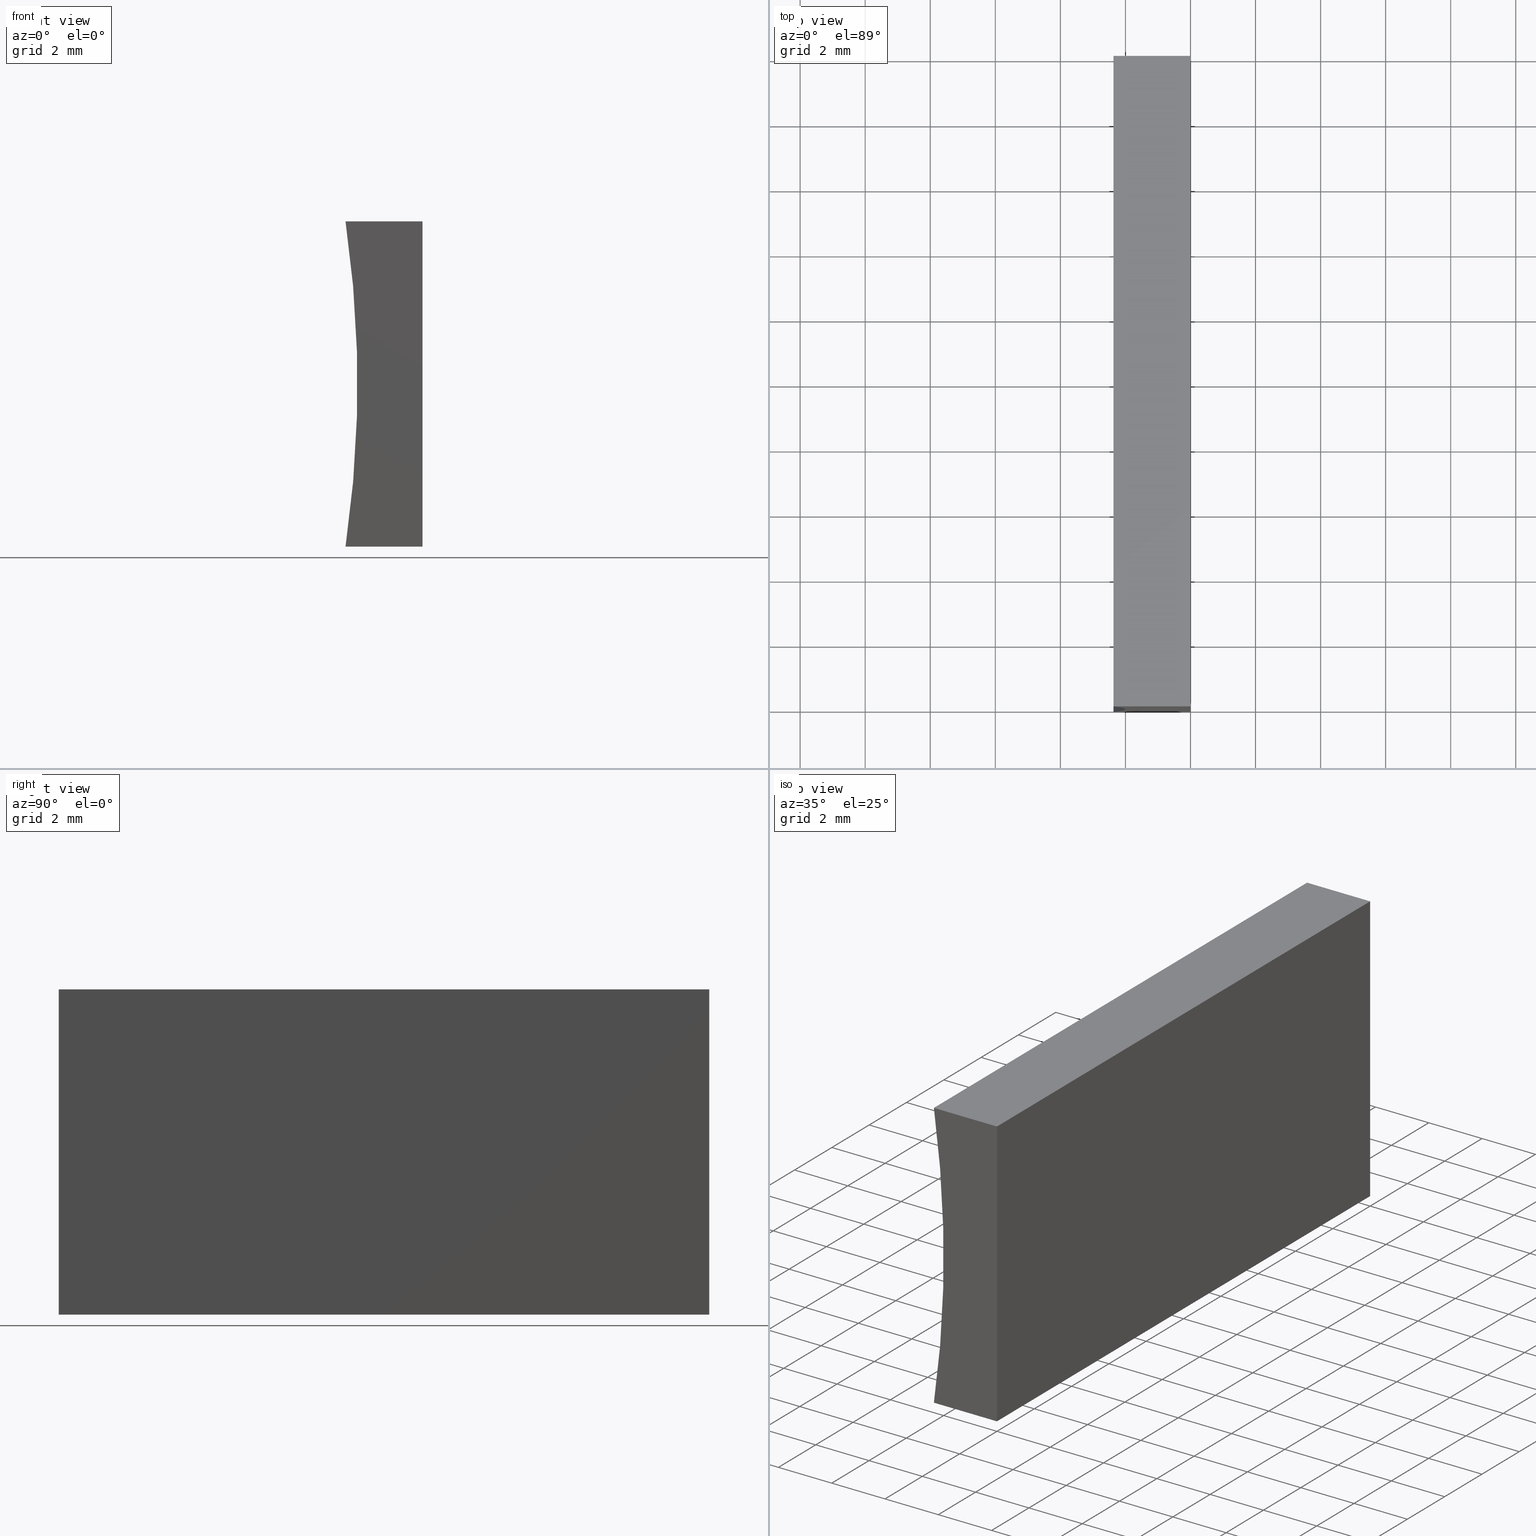
[diagram: canonical four-view strip — front | top / right | iso, engineering-drawing reading convention]
A machine part, canonical four-view strip (front | top / right | iso — engineering-drawing reading convention). The complete STEP part file that produces these views, byte-faithful:
ISO-10303-21;
HEADER;
FILE_DESCRIPTION (( 'STEP AP214' ),
    '1' );
FILE_NAME ('155480.STEP',
    '2019-07-03T07:46:18',
    ( 'user' ),
    ( '΢���й�' ),
    'SwSTEP 2.0',
    'SolidWorks 2016',
    '' );
FILE_SCHEMA (( 'AUTOMOTIVE_DESIGN' ));
ENDSEC;

DATA;
#1 = ADVANCED_FACE ( 'NONE', ( #21 ), #162, .F. ) ;
#2 = PRODUCT_DEFINITION_SHAPE ( 'NONE', 'NONE',  #20 ) ;
#3 = PRODUCT_DEFINITION_CONTEXT ( 'detailed design', #136, 'design' ) ;
#4 = LINE ( 'NONE', #117, #149 ) ;
#5 = SURFACE_STYLE_USAGE ( .BOTH. , #197 ) ;
#6 = UNCERTAINTY_MEASURE_WITH_UNIT (LENGTH_MEASURE( 1.000000000000000100E-005 ), #63, 'distance_accuracy_value', 'NONE');
#7 = EDGE_CURVE ( 'NONE', #81, #139, #37, .T. ) ;
#8 = VECTOR ( 'NONE', #140, 1000.000000000000000 ) ;
#9 = ORIENTED_EDGE ( 'NONE', *, *, #146, .T. ) ;
#10 = CARTESIAN_POINT ( 'NONE',  ( -2.365849282349278900, 0.0000000000000000000, 8.673617379884035500E-016 ) ) ;
#11 = ORIENTED_EDGE ( 'NONE', *, *, #141, .T. ) ;
#12 = ADVANCED_FACE ( 'NONE', ( #47 ), #98, .F. ) ;
#13 = FACE_OUTER_BOUND ( 'NONE', #147, .T. ) ;
#14 = LINE ( 'NONE', #135, #93 ) ;
#15 = PLANE ( 'NONE',  #200 ) ;
#16 = ORIENTED_EDGE ( 'NONE', *, *, #141, .F. ) ;
#17 = EDGE_LOOP ( 'NONE', ( #53, #188, #68, #90 ) ) ;
#18 = CARTESIAN_POINT ( 'NONE',  ( 0.0000000000000000000, 0.0000000000000000000, 0.0000000000000000000 ) ) ;
#19 = PLANE ( 'NONE',  #142 ) ;
#20 = PRODUCT_DEFINITION ( 'δ֪', '', #155, #3 ) ;
#21 = FACE_OUTER_BOUND ( 'NONE', #95, .T. ) ;
#22 = ORIENTED_EDGE ( 'NONE', *, *, #115, .T. ) ;
#23 = CARTESIAN_POINT ( 'NONE',  ( 0.0000000000000000000, 20.00000000000000000, 0.0000000000000000000 ) ) ;
#24 = SHAPE_DEFINITION_REPRESENTATION ( #2, #44 ) ;
#25 = CARTESIAN_POINT ( 'NONE',  ( 0.0000000000000000000, 20.00000000000000000, 0.0000000000000000000 ) ) ;
#26 = PLANE ( 'NONE',  #33 ) ;
#27 = DIRECTION ( 'NONE',  ( -7.332349904615366500E-016, 0.0000000000000000000, -1.000000000000000000 ) ) ;
#28 = CARTESIAN_POINT ( 'NONE',  ( -36.35000000000000100, 0.0000000000000000000, 5.000000000000005300 ) ) ;
#29 = DIRECTION ( 'NONE',  ( -1.000000000000000000, 0.0000000000000000000, -7.332349904615364600E-016 ) ) ;
#30 = MANIFOLD_SOLID_BREP ( '͹̨-����1', #180 ) ;
#31 = EDGE_LOOP ( 'NONE', ( #204, #134, #16, #66 ) ) ;
#32 = ORIENTED_EDGE ( 'NONE', *, *, #84, .F. ) ;
#33 = AXIS2_PLACEMENT_3D ( 'NONE', #28, #42, #195 ) ;
#34 = FILL_AREA_STYLE_COLOUR ( '', #82 ) ;
#35 = VECTOR ( 'NONE', #61, 1000.000000000000000 ) ;
#36 = DIRECTION ( 'NONE',  ( 0.0000000000000000000, 0.0000000000000000000, -1.000000000000000000 ) ) ;
#37 = LINE ( 'NONE', #77, #35 ) ;
#38 = APPLICATION_CONTEXT ( 'automotive_design' ) ;
#39 = DIRECTION ( 'NONE',  ( 1.000000000000000000, -0.0000000000000000000, -7.332349904615366500E-016 ) ) ;
#40 = ORIENTED_EDGE ( 'NONE', *, *, #146, .F. ) ;
#41 = ORIENTED_EDGE ( 'NONE', *, *, #127, .F. ) ;
#42 = DIRECTION ( 'NONE',  ( 0.0000000000000000000, 1.000000000000000000, 0.0000000000000000000 ) ) ;
#43 = ORIENTED_EDGE ( 'NONE', *, *, #86, .T. ) ;
#44 = ADVANCED_BREP_SHAPE_REPRESENTATION ( '155480', ( #30, #177 ), #192 ) ;
#45 = SURFACE_STYLE_FILL_AREA ( #75 ) ;
#46 =( NAMED_UNIT ( * ) SI_UNIT ( $, .STERADIAN. ) SOLID_ANGLE_UNIT ( ) );
#47 = FACE_OUTER_BOUND ( 'NONE', #137, .T. ) ;
#48 = CARTESIAN_POINT ( 'NONE',  ( -36.35000000000000100, 20.00000000000000000, 5.000000000000005300 ) ) ;
#49 = ORIENTED_EDGE ( 'NONE', *, *, #132, .F. ) ;
#50 = VERTEX_POINT ( 'NONE', #169 ) ;
#51 = ORIENTED_EDGE ( 'NONE', *, *, #196, .T. ) ;
#52 = CARTESIAN_POINT ( 'NONE',  ( -2.365849282349278500, 20.00000000000000000, 10.00000000000000200 ) ) ;
#53 = ORIENTED_EDGE ( 'NONE', *, *, #7, .F. ) ;
#54 = APPLICATION_PROTOCOL_DEFINITION ( 'draft international standard', 'automotive_design', 1998, #136 ) ;
#55 = ADVANCED_FACE ( 'NONE', ( #99 ), #19, .F. ) ;
#56 = LINE ( 'NONE', #102, #182 ) ;
#57 = AXIS2_PLACEMENT_3D ( 'NONE', #25, #110, #164 ) ;
#58 = VERTEX_POINT ( 'NONE', #108 ) ;
#59 = DIRECTION ( 'NONE',  ( 0.0000000000000000000, 1.000000000000000000, 0.0000000000000000000 ) ) ;
#60 = SURFACE_STYLE_FILL_AREA ( #78 ) ;
#61 = DIRECTION ( 'NONE',  ( -1.000000000000000000, 0.0000000000000000000, -7.332349904615364600E-016 ) ) ;
#62 = CARTESIAN_POINT ( 'NONE',  ( 6.123233995736766300E-016, 20.00000000000000000, 10.00000000000000000 ) ) ;
#63 =( LENGTH_UNIT ( ) NAMED_UNIT ( * ) SI_UNIT ( .MILLI., .METRE. ) );
#64 = STYLED_ITEM ( 'NONE', ( #130 ), #30 ) ;
#65 = ORIENTED_EDGE ( 'NONE', *, *, #127, .T. ) ;
#66 = ORIENTED_EDGE ( 'NONE', *, *, #84, .T. ) ;
#67 =( NAMED_UNIT ( * ) PLANE_ANGLE_UNIT ( ) SI_UNIT ( $, .RADIAN. ) );
#68 = ORIENTED_EDGE ( 'NONE', *, *, #194, .F. ) ;
#69 = DIRECTION ( 'NONE',  ( -6.123233995736766000E-017, -0.0000000000000000000, -1.000000000000000000 ) ) ;
#70 = DIRECTION ( 'NONE',  ( -6.123233995736766000E-017, -0.0000000000000000000, -1.000000000000000000 ) ) ;
#71 = ORIENTED_EDGE ( 'NONE', *, *, #132, .T. ) ;
#72 = AXIS2_PLACEMENT_3D ( 'NONE', #178, #80, #94 ) ;
#73 = DIRECTION ( 'NONE',  ( 0.0000000000000000000, 0.0000000000000000000, 1.000000000000000000 ) ) ;
#74 = LINE ( 'NONE', #193, #8 ) ;
#75 = FILL_AREA_STYLE ('',( #34 ) ) ;
#76 = PRODUCT ( '155480', '155480', '', ( #179 ) ) ;
#77 = CARTESIAN_POINT ( 'NONE',  ( 0.0000000000000000000, 0.0000000000000000000, 0.0000000000000000000 ) ) ;
#78 = FILL_AREA_STYLE ('',( #202 ) ) ;
#79 = MECHANICAL_DESIGN_GEOMETRIC_PRESENTATION_REPRESENTATION (  '', ( #64 ), #152 ) ;
#80 = DIRECTION ( 'NONE',  ( -1.000000000000000000, 0.0000000000000000000, 6.123233995736766000E-017 ) ) ;
#81 = VERTEX_POINT ( 'NONE', #189 ) ;
#82 = COLOUR_RGB ( '',1.000000000000000000, 1.000000000000000000, 1.000000000000000000 ) ;
#83 =( LENGTH_UNIT ( ) NAMED_UNIT ( * ) SI_UNIT ( .MILLI., .METRE. ) );
#84 = EDGE_CURVE ( 'NONE', #50, #138, #89, .T. ) ;
#85 = DIRECTION ( 'NONE',  ( 0.0000000000000000000, -0.0000000000000000000, 1.000000000000000000 ) ) ;
#86 = EDGE_CURVE ( 'NONE', #119, #81, #14, .T. ) ;
#87 = LINE ( 'NONE', #175, #148 ) ;
#88 = VECTOR ( 'NONE', #39, 1000.000000000000000 ) ;
#89 = LINE ( 'NONE', #52, #159 ) ;
#90 = ORIENTED_EDGE ( 'NONE', *, *, #199, .F. ) ;
#91 = PRODUCT_RELATED_PRODUCT_CATEGORY ( 'part', '', ( #76 ) ) ;
#92 = CARTESIAN_POINT ( 'NONE',  ( 0.0000000000000000000, 20.00000000000000000, 0.0000000000000000000 ) ) ;
#93 = VECTOR ( 'NONE', #69, 1000.000000000000000 ) ;
#94 = DIRECTION ( 'NONE',  ( 6.123233995736766000E-017, 0.0000000000000000000, 1.000000000000000000 ) ) ;
#95 = EDGE_LOOP ( 'NONE', ( #101, #156, #40, #65 ) ) ;
#96 = CARTESIAN_POINT ( 'NONE',  ( 0.0000000000000000000, 20.00000000000000000, 0.0000000000000000000 ) ) ;
#97 = CARTESIAN_POINT ( 'NONE',  ( -36.35000000000000100, 20.00000000000000000, 5.000000000000005300 ) ) ;
#98 = PLANE ( 'NONE',  #72 ) ;
#99 = FACE_OUTER_BOUND ( 'NONE', #31, .T. ) ;
#100 = VERTEX_POINT ( 'NONE', #62 ) ;
#101 = ORIENTED_EDGE ( 'NONE', *, *, #7, .T. ) ;
#102 = CARTESIAN_POINT ( 'NONE',  ( 6.123233995736766300E-016, 20.00000000000000000, 10.00000000000000000 ) ) ;
#103 = CYLINDRICAL_SURFACE ( 'NONE', #161, 34.35000000000000100 ) ;
#104 = FACE_OUTER_BOUND ( 'NONE', #144, .T. ) ;
#105 =( NAMED_UNIT ( * ) SI_UNIT ( $, .STERADIAN. ) SOLID_ANGLE_UNIT ( ) );
#106 = EDGE_CURVE ( 'NONE', #58, #139, #87, .T. ) ;
#107 = VERTEX_POINT ( 'NONE', #23 ) ;
#108 = CARTESIAN_POINT ( 'NONE',  ( -2.365849282349278900, 20.00000000000000000, 8.673617379884035500E-016 ) ) ;
#109 = COLOUR_RGB ( '',1.000000000000000000, 1.000000000000000000, 1.000000000000000000 ) ;
#110 = DIRECTION ( 'NONE',  ( -7.332349904615365600E-016, 0.0000000000000000000, 1.000000000000000000 ) ) ;
#111 = ORIENTED_EDGE ( 'NONE', *, *, #106, .T. ) ;
#112 = LINE ( 'NONE', #133, #88 ) ;
#113 = DIRECTION ( 'NONE',  ( -0.0000000000000000000, -1.000000000000000000, -0.0000000000000000000 ) ) ;
#114 = DIRECTION ( 'NONE',  ( -0.0000000000000000000, -1.000000000000000000, -0.0000000000000000000 ) ) ;
#115 = EDGE_CURVE ( 'NONE', #100, #119, #74, .T. ) ;
#116 = MECHANICAL_DESIGN_GEOMETRIC_PRESENTATION_REPRESENTATION (  '', ( #174 ), #122 ) ;
#117 = CARTESIAN_POINT ( 'NONE',  ( 0.0000000000000000000, 20.00000000000000000, 0.0000000000000000000 ) ) ;
#118 = ADVANCED_FACE ( 'NONE', ( #104 ), #15, .T. ) ;
#119 = VERTEX_POINT ( 'NONE', #166 ) ;
#120 = PRESENTATION_LAYER_ASSIGNMENT (  '', '', ( #64 ) ) ;
#121 = DIRECTION ( 'NONE',  ( -0.0000000000000000000, -1.000000000000000000, -0.0000000000000000000 ) ) ;
#122 =( GEOMETRIC_REPRESENTATION_CONTEXT ( 3 ) GLOBAL_UNCERTAINTY_ASSIGNED_CONTEXT ( ( #6 ) ) GLOBAL_UNIT_ASSIGNED_CONTEXT ( ( #63, #184, #105 ) ) REPRESENTATION_CONTEXT ( 'NONE', 'WORKASPACE' ) );
#123 = PRESENTATION_STYLE_ASSIGNMENT (( #129 ) ) ;
#124 = LINE ( 'NONE', #96, #163 ) ;
#125 = CIRCLE ( 'NONE', #190, 34.35000000000000100 ) ;
#126 = DIRECTION ( 'NONE',  ( 0.0000000000000000000, 0.0000000000000000000, 1.000000000000000000 ) ) ;
#127 = EDGE_CURVE ( 'NONE', #107, #81, #124, .T. ) ;
#128 = DIRECTION ( 'NONE',  ( -1.000000000000000000, 0.0000000000000000000, 7.332349904615366500E-016 ) ) ;
#129 = SURFACE_STYLE_USAGE ( .BOTH. , #172 ) ;
#130 = PRESENTATION_STYLE_ASSIGNMENT (( #5 ) ) ;
#131 = CARTESIAN_POINT ( 'NONE',  ( -2.365849282349278500, 0.0000000000000000000, 10.00000000000000200 ) ) ;
#132 = EDGE_CURVE ( 'NONE', #58, #50, #203, .T. ) ;
#133 = CARTESIAN_POINT ( 'NONE',  ( 6.123233995736766300E-016, 0.0000000000000000000, 10.00000000000000000 ) ) ;
#134 = ORIENTED_EDGE ( 'NONE', *, *, #115, .F. ) ;
#135 = CARTESIAN_POINT ( 'NONE',  ( 0.0000000000000000000, 0.0000000000000000000, 0.0000000000000000000 ) ) ;
#136 = APPLICATION_CONTEXT ( 'automotive_design' ) ;
#137 = EDGE_LOOP ( 'NONE', ( #43, #41, #158, #22 ) ) ;
#138 = VERTEX_POINT ( 'NONE', #131 ) ;
#139 = VERTEX_POINT ( 'NONE', #10 ) ;
#140 = DIRECTION ( 'NONE',  ( -0.0000000000000000000, -1.000000000000000000, -0.0000000000000000000 ) ) ;
#141 = EDGE_CURVE ( 'NONE', #50, #100, #56, .T. ) ;
#142 = AXIS2_PLACEMENT_3D ( 'NONE', #173, #27, #128 ) ;
#143 =( NAMED_UNIT ( * ) PLANE_ANGLE_UNIT ( ) SI_UNIT ( $, .RADIAN. ) );
#144 = EDGE_LOOP ( 'NONE', ( #9, #71, #11, #51 ) ) ;
#145 = DIRECTION ( 'NONE',  ( -0.0000000000000000000, -1.000000000000000000, -0.0000000000000000000 ) ) ;
#146 = EDGE_CURVE ( 'NONE', #107, #58, #4, .T. ) ;
#147 = EDGE_LOOP ( 'NONE', ( #170, #32, #49, #111 ) ) ;
#148 = VECTOR ( 'NONE', #145, 1000.000000000000000 ) ;
#149 = VECTOR ( 'NONE', #29, 1000.000000000000000 ) ;
#150 = DIRECTION ( 'NONE',  ( 1.000000000000000000, 0.0000000000000000000, 0.0000000000000000000 ) ) ;
#151 = APPLICATION_PROTOCOL_DEFINITION ( 'draft international standard', 'automotive_design', 1998, #38 ) ;
#152 =( GEOMETRIC_REPRESENTATION_CONTEXT ( 3 ) GLOBAL_UNCERTAINTY_ASSIGNED_CONTEXT ( ( #201 ) ) GLOBAL_UNIT_ASSIGNED_CONTEXT ( ( #83, #67, #46 ) ) REPRESENTATION_CONTEXT ( 'NONE', 'WORKASPACE' ) );
#153 = DIRECTION ( 'NONE',  ( 1.000000000000000000, -0.0000000000000000000, -7.332349904615366500E-016 ) ) ;
#154 = FACE_OUTER_BOUND ( 'NONE', #17, .T. ) ;
#155 = PRODUCT_DEFINITION_FORMATION_WITH_SPECIFIED_SOURCE ( '�κ�', '', #76, .NOT_KNOWN. ) ;
#156 = ORIENTED_EDGE ( 'NONE', *, *, #106, .F. ) ;
#157 = UNCERTAINTY_MEASURE_WITH_UNIT (LENGTH_MEASURE( 1.000000000000000100E-005 ), #185, 'distance_accuracy_value', 'NONE');
#158 = ORIENTED_EDGE ( 'NONE', *, *, #196, .F. ) ;
#159 = VECTOR ( 'NONE', #113, 1000.000000000000000 ) ;
#160 = PRESENTATION_LAYER_ASSIGNMENT (  '', '', ( #174 ) ) ;
#161 = AXIS2_PLACEMENT_3D ( 'NONE', #97, #114, #36 ) ;
#162 = PLANE ( 'NONE',  #57 ) ;
#163 = VECTOR ( 'NONE', #176, 1000.000000000000000 ) ;
#164 = DIRECTION ( 'NONE',  ( 1.000000000000000000, 0.0000000000000000000, 7.332349904615365600E-016 ) ) ;
#165 = VECTOR ( 'NONE', #70, 1000.000000000000000 ) ;
#166 = CARTESIAN_POINT ( 'NONE',  ( 6.123233995736766300E-016, 0.0000000000000000000, 10.00000000000000000 ) ) ;
#167 = DIRECTION ( 'NONE',  ( -0.0000000000000000000, -1.000000000000000000, -0.0000000000000000000 ) ) ;
#168 = AXIS2_PLACEMENT_3D ( 'NONE', #48, #167, #73 ) ;
#169 = CARTESIAN_POINT ( 'NONE',  ( -2.365849282349278500, 20.00000000000000000, 10.00000000000000200 ) ) ;
#170 = ORIENTED_EDGE ( 'NONE', *, *, #199, .T. ) ;
#171 = CARTESIAN_POINT ( 'NONE',  ( -36.35000000000000100, 0.0000000000000000000, 5.000000000000005300 ) ) ;
#172 = SURFACE_SIDE_STYLE ('',( #60 ) ) ;
#173 = CARTESIAN_POINT ( 'NONE',  ( 6.123233995736766300E-016, 20.00000000000000000, 10.00000000000000000 ) ) ;
#174 = STYLED_ITEM ( 'NONE', ( #123 ), #44 ) ;
#175 = CARTESIAN_POINT ( 'NONE',  ( -2.365849282349278900, 20.00000000000000000, 8.673617379884035500E-016 ) ) ;
#176 = DIRECTION ( 'NONE',  ( -0.0000000000000000000, -1.000000000000000000, -0.0000000000000000000 ) ) ;
#177 = AXIS2_PLACEMENT_3D ( 'NONE', #18, #183, #150 ) ;
#178 = CARTESIAN_POINT ( 'NONE',  ( 0.0000000000000000000, 20.00000000000000000, 0.0000000000000000000 ) ) ;
#179 = PRODUCT_CONTEXT ( 'NONE', #38, 'mechanical' ) ;
#180 = CLOSED_SHELL ( 'NONE', ( #1, #191, #55, #12, #118, #187 ) ) ;
#181 = LINE ( 'NONE', #92, #165 ) ;
#182 = VECTOR ( 'NONE', #153, 1000.000000000000000 ) ;
#183 = DIRECTION ( 'NONE',  ( 0.0000000000000000000, 0.0000000000000000000, 1.000000000000000000 ) ) ;
#184 =( NAMED_UNIT ( * ) PLANE_ANGLE_UNIT ( ) SI_UNIT ( $, .RADIAN. ) );
#185 =( LENGTH_UNIT ( ) NAMED_UNIT ( * ) SI_UNIT ( .MILLI., .METRE. ) );
#186 = CARTESIAN_POINT ( 'NONE',  ( -36.35000000000000100, 20.00000000000000000, 5.000000000000005300 ) ) ;
#187 = ADVANCED_FACE ( 'NONE', ( #154 ), #26, .F. ) ;
#188 = ORIENTED_EDGE ( 'NONE', *, *, #86, .F. ) ;
#189 = CARTESIAN_POINT ( 'NONE',  ( 0.0000000000000000000, 0.0000000000000000000, 0.0000000000000000000 ) ) ;
#190 = AXIS2_PLACEMENT_3D ( 'NONE', #171, #121, #126 ) ;
#191 = ADVANCED_FACE ( 'NONE', ( #13 ), #103, .F. ) ;
#192 =( GEOMETRIC_REPRESENTATION_CONTEXT ( 3 ) GLOBAL_UNCERTAINTY_ASSIGNED_CONTEXT ( ( #157 ) ) GLOBAL_UNIT_ASSIGNED_CONTEXT ( ( #185, #143, #198 ) ) REPRESENTATION_CONTEXT ( 'NONE', 'WORKASPACE' ) );
#193 = CARTESIAN_POINT ( 'NONE',  ( 6.123233995736766300E-016, 20.00000000000000000, 10.00000000000000000 ) ) ;
#194 = EDGE_CURVE ( 'NONE', #138, #119, #112, .T. ) ;
#195 = DIRECTION ( 'NONE',  ( 0.0000000000000000000, -0.0000000000000000000, 1.000000000000000000 ) ) ;
#196 = EDGE_CURVE ( 'NONE', #100, #107, #181, .T. ) ;
#197 = SURFACE_SIDE_STYLE ('',( #45 ) ) ;
#198 =( NAMED_UNIT ( * ) SI_UNIT ( $, .STERADIAN. ) SOLID_ANGLE_UNIT ( ) );
#199 = EDGE_CURVE ( 'NONE', #139, #138, #125, .T. ) ;
#200 = AXIS2_PLACEMENT_3D ( 'NONE', #186, #59, #85 ) ;
#201 = UNCERTAINTY_MEASURE_WITH_UNIT (LENGTH_MEASURE( 1.000000000000000100E-005 ), #83, 'distance_accuracy_value', 'NONE');
#202 = FILL_AREA_STYLE_COLOUR ( '', #109 ) ;
#203 = CIRCLE ( 'NONE', #168, 34.35000000000000100 ) ;
#204 = ORIENTED_EDGE ( 'NONE', *, *, #194, .T. ) ;
ENDSEC;
END-ISO-10303-21;
